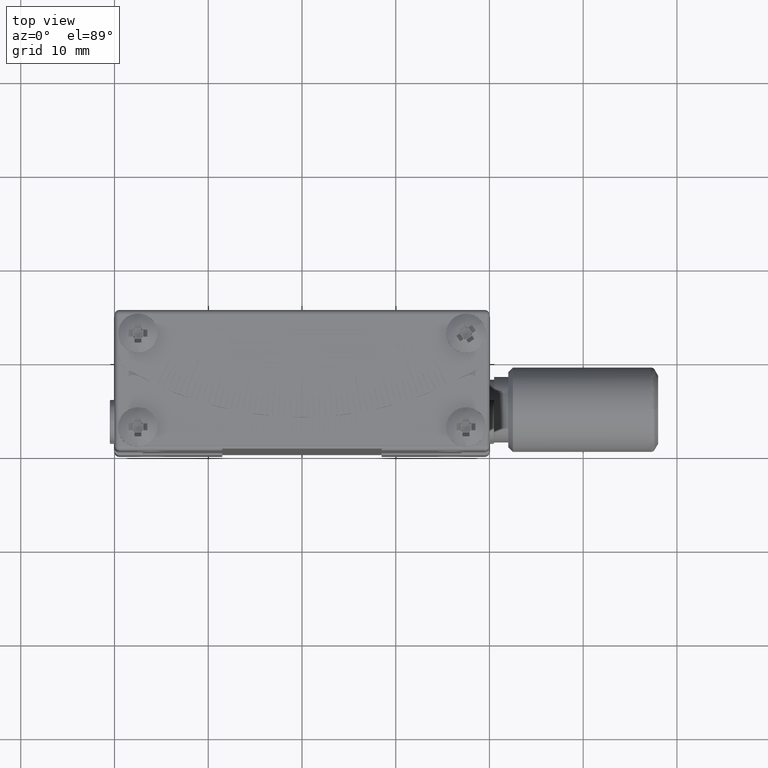
[diagram: clean part render]
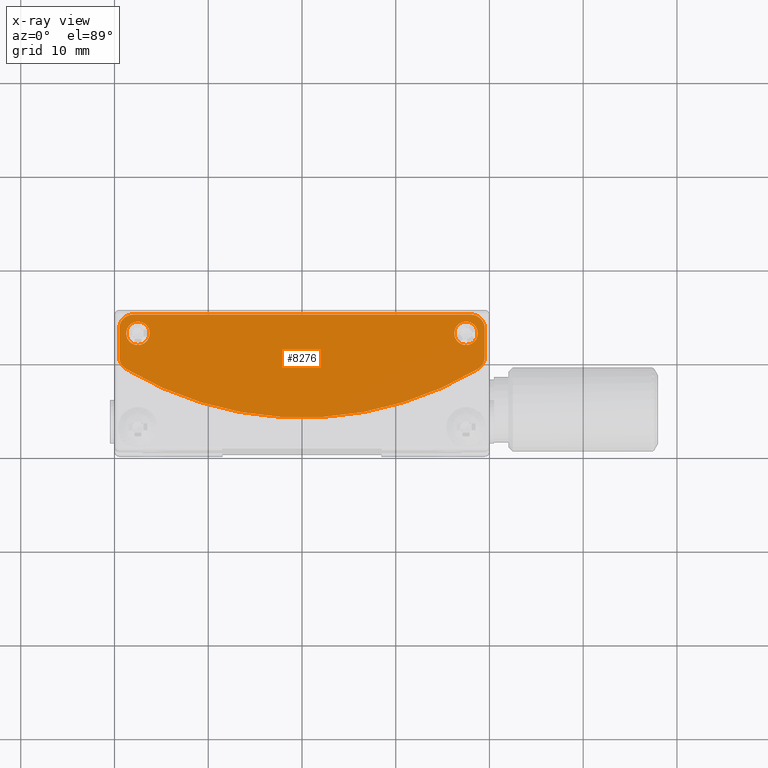
[diagram: x-ray — body ghosted, one internal face saturated and labeled with its STEP entity id]
A machine part, top view, then the same camera in x-ray: the body is ghosted and one INTERNAL B-rep face — a face not visible from any outside direction — is saturated and labeled: STEP entity #8276.
In plain terms, the highlighted planar face has unit normal (0, 0, -1).
Its self-contained STEP definition (entity closure, byte-faithful):
#474 = AXIS2_PLACEMENT_3D ( 'NONE', #20918, #14311, #21202 ) ;
#627 = AXIS2_PLACEMENT_3D ( 'NONE', #5331, #1351, #16334 ) ;
#703 = AXIS2_PLACEMENT_3D ( 'NONE', #8646, #15693, #22446 ) ;
#850 = DIRECTION ( 'NONE',  ( 1.000000000000000000, 0.000000000000000000, 0.000000000000000000 ) ) ;
#870 = AXIS2_PLACEMENT_3D ( 'NONE', #5677, #11987, #23581 ) ;
#997 = DIRECTION ( 'NONE',  ( 0.000000000000000000, 0.000000000000000000, 1.000000000000000000 ) ) ;
#1351 = DIRECTION ( 'NONE',  ( 0.000000000000000000, 0.000000000000000000, 1.000000000000000000 ) ) ;
#1472 = CARTESIAN_POINT ( 'NONE',  ( -18.00000000000000000, 14.50000000000000000, 20.00000000000000000 ) ) ;
#1638 = CARTESIAN_POINT ( 'NONE',  ( 17.50000000000000000, 12.50000000000000000, 20.00000000000000000 ) ) ;
#1890 = VERTEX_POINT ( 'NONE', #23018 ) ;
#1958 = VERTEX_POINT ( 'NONE', #3186 ) ;
#2032 = AXIS2_PLACEMENT_3D ( 'NONE', #1638, #17340, #26300 ) ;
#2259 = ORIENTED_EDGE ( 'NONE', *, *, #14918, .F. ) ;
#2287 = EDGE_CURVE ( 'NONE', #28669, #6924, #26406, .T. ) ;
#2566 = EDGE_CURVE ( 'NONE', #11708, #5700, #6740, .T. ) ;
#3186 = CARTESIAN_POINT ( 'NONE',  ( 19.50000000000000000, 9.983337960392740129, 20.00000000000000000 ) ) ;
#3264 = LINE ( 'NONE', #6996, #5035 ) ;
#3690 = CARTESIAN_POINT ( 'NONE',  ( -16.25000000000000000, 12.50000000000000000, 20.00000000000000000 ) ) ;
#3693 = PLANE ( 'NONE',  #16394 ) ;
#4644 = LINE ( 'NONE', #19745, #21766 ) ;
#4696 = CARTESIAN_POINT ( 'NONE',  ( 18.77142857142855092, 8.696909587266709707, 20.00000000000000000 ) ) ;
#4752 = DIRECTION ( 'NONE',  ( -1.000000000000000000, 0.000000000000000000, 0.000000000000000000 ) ) ;
#5035 = VECTOR ( 'NONE', #13602, 1000.000000000000000 ) ;
#5233 = EDGE_CURVE ( 'NONE', #23339, #28669, #14775, .T. ) ;
#5331 = CARTESIAN_POINT ( 'NONE',  ( 6.071532165918820097E-15, 40.00000000000000000, 20.00000000000000000 ) ) ;
#5339 = CARTESIAN_POINT ( 'NONE',  ( 18.00000000000000000, 14.50000000000000000, 20.00000000000000000 ) ) ;
#5677 = CARTESIAN_POINT ( 'NONE',  ( 17.50000000000000000, 12.50000000000000000, 20.00000000000000000 ) ) ;
#5700 = VERTEX_POINT ( 'NONE', #16088 ) ;
#5756 = FACE_BOUND ( 'NONE', #19684, .T. ) ;
#5883 = ORIENTED_EDGE ( 'NONE', *, *, #8782, .F. ) ;
#5929 = CARTESIAN_POINT ( 'NONE',  ( -18.75000000000000000, 12.50000000000000000, 20.00000000000000000 ) ) ;
#6740 = CIRCLE ( 'NONE', #2032, 1.250000000000001110 ) ;
#6924 = VERTEX_POINT ( 'NONE', #4696 ) ;
#6996 = CARTESIAN_POINT ( 'NONE',  ( -18.00000000000000000, 14.50000000000000000, 20.00000000000000000 ) ) ;
#7146 = AXIS2_PLACEMENT_3D ( 'NONE', #15339, #17830, #11084 ) ;
#7302 = DIRECTION ( 'NONE',  ( 0.000000000000000000, 0.000000000000000000, 1.000000000000000000 ) ) ;
#7681 = EDGE_CURVE ( 'NONE', #21508, #23339, #4644, .T. ) ;
#7812 = FACE_OUTER_BOUND ( 'NONE', #22946, .T. ) ;
#7910 = CARTESIAN_POINT ( 'NONE',  ( 19.50000000000000000, 13.00000000000000000, 20.00000000000000000 ) ) ;
#8207 = LINE ( 'NONE', #7910, #22221 ) ;
#8276 = ADVANCED_FACE ( 'NONE', ( #18964, #5756, #7812 ), #3693, .T. ) ;
#8646 = CARTESIAN_POINT ( 'NONE',  ( -18.00000000000000000, 9.983337960392740129, 20.00000000000000000 ) ) ;
#8711 = ORIENTED_EDGE ( 'NONE', *, *, #24785, .F. ) ;
#8782 = EDGE_CURVE ( 'NONE', #13944, #21508, #10797, .T. ) ;
#9084 = CIRCLE ( 'NONE', #23140, 1.250000000000001110 ) ;
#9647 = CARTESIAN_POINT ( 'NONE',  ( -18.77142857142855092, 8.696909587266709707, 20.00000000000000000 ) ) ;
#9980 = ORIENTED_EDGE ( 'NONE', *, *, #10183, .F. ) ;
#10183 = EDGE_CURVE ( 'NONE', #17808, #13944, #3264, .T. ) ;
#10797 = CIRCLE ( 'NONE', #474, 1.500000000000001332 ) ;
#11084 = DIRECTION ( 'NONE',  ( -1.000000000000000000, 0.000000000000000000, 0.000000000000000000 ) ) ;
#11671 = CIRCLE ( 'NONE', #870, 1.250000000000001110 ) ;
#11708 = VERTEX_POINT ( 'NONE', #12955 ) ;
#11987 = DIRECTION ( 'NONE',  ( 0.000000000000000000, 0.000000000000000000, 1.000000000000000000 ) ) ;
#12276 = EDGE_LOOP ( 'NONE', ( #28755, #24494 ) ) ;
#12728 = VERTEX_POINT ( 'NONE', #5929 ) ;
#12955 = CARTESIAN_POINT ( 'NONE',  ( 16.25000000000000000, 12.50000000000000000, 20.00000000000000000 ) ) ;
#13602 = DIRECTION ( 'NONE',  ( -1.000000000000000000, -9.637352644315598941E-17, 0.000000000000000000 ) ) ;
#13842 = CARTESIAN_POINT ( 'NONE',  ( -17.50000000000000000, 12.50000000000000000, 20.00000000000000000 ) ) ;
#13944 = VERTEX_POINT ( 'NONE', #1472 ) ;
#14219 = CARTESIAN_POINT ( 'NONE',  ( 18.00000000000000000, 9.983337960392740129, 20.00000000000000000 ) ) ;
#14311 = DIRECTION ( 'NONE',  ( 0.000000000000000000, 0.000000000000000000, 1.000000000000000000 ) ) ;
#14707 = DIRECTION ( 'NONE',  ( 0.000000000000000000, 0.000000000000000000, -1.000000000000000000 ) ) ;
#14775 = CIRCLE ( 'NONE', #703, 1.500000000000001332 ) ;
#14918 = EDGE_CURVE ( 'NONE', #6924, #1958, #24471, .T. ) ;
#15339 = CARTESIAN_POINT ( 'NONE',  ( -17.50000000000000000, 12.50000000000000000, 20.00000000000000000 ) ) ;
#15693 = DIRECTION ( 'NONE',  ( 0.000000000000000000, 0.000000000000000000, 1.000000000000000000 ) ) ;
#16088 = CARTESIAN_POINT ( 'NONE',  ( 18.75000000000000000, 12.50000000000000000, 20.00000000000000000 ) ) ;
#16334 = DIRECTION ( 'NONE',  ( 1.000000000000000000, 0.000000000000000000, 0.000000000000000000 ) ) ;
#16394 = AXIS2_PLACEMENT_3D ( 'NONE', #16759, #14707, #21312 ) ;
#16516 = CIRCLE ( 'NONE', #7146, 1.250000000000001110 ) ;
#16759 = CARTESIAN_POINT ( 'NONE',  ( 18.00000000000000000, 13.00000000000000000, 20.00000000000000000 ) ) ;
#17151 = DIRECTION ( 'NONE',  ( 3.450284028904965013E-15, 1.000000000000000000, 0.000000000000000000 ) ) ;
#17340 = DIRECTION ( 'NONE',  ( 0.000000000000000000, 0.000000000000000000, 1.000000000000000000 ) ) ;
#17808 = VERTEX_POINT ( 'NONE', #5339 ) ;
#17830 = DIRECTION ( 'NONE',  ( 0.000000000000000000, 0.000000000000000000, 1.000000000000000000 ) ) ;
#18806 = EDGE_CURVE ( 'NONE', #23364, #12728, #16516, .T. ) ;
#18964 = FACE_BOUND ( 'NONE', #12276, .T. ) ;
#19678 = CARTESIAN_POINT ( 'NONE',  ( -19.50000000000000000, 9.983337960392740129, 20.00000000000000000 ) ) ;
#19684 = EDGE_LOOP ( 'NONE', ( #26064, #28113 ) ) ;
#19745 = CARTESIAN_POINT ( 'NONE',  ( -19.50000000000000000, 13.00000000000000000, 20.00000000000000000 ) ) ;
#20219 = CARTESIAN_POINT ( 'NONE',  ( 18.00000000000000000, 13.00000000000000000, 20.00000000000000000 ) ) ;
#20366 = DIRECTION ( 'NONE',  ( -1.000000000000000000, 0.000000000000000000, 0.000000000000000000 ) ) ;
#20918 = CARTESIAN_POINT ( 'NONE',  ( -18.00000000000000000, 13.00000000000000000, 20.00000000000000000 ) ) ;
#21202 = DIRECTION ( 'NONE',  ( 1.000000000000000000, 0.000000000000000000, 0.000000000000000000 ) ) ;
#21312 = DIRECTION ( 'NONE',  ( 0.000000000000000000, -1.000000000000000000, 0.000000000000000000 ) ) ;
#21315 = ORIENTED_EDGE ( 'NONE', *, *, #7681, .F. ) ;
#21508 = VERTEX_POINT ( 'NONE', #24161 ) ;
#21766 = VECTOR ( 'NONE', #24744, 1000.000000000000000 ) ;
#22221 = VECTOR ( 'NONE', #17151, 1000.000000000000000 ) ;
#22446 = DIRECTION ( 'NONE',  ( 1.000000000000000000, 0.000000000000000000, 0.000000000000000000 ) ) ;
#22946 = EDGE_LOOP ( 'NONE', ( #8711, #27419, #2259, #25428, #24757, #21315, #5883, #9980 ) ) ;
#23018 = CARTESIAN_POINT ( 'NONE',  ( 19.50000000000000000, 13.00000000000000000, 20.00000000000000000 ) ) ;
#23099 = EDGE_CURVE ( 'NONE', #12728, #23364, #9084, .T. ) ;
#23140 = AXIS2_PLACEMENT_3D ( 'NONE', #13842, #28982, #4752 ) ;
#23339 = VERTEX_POINT ( 'NONE', #19678 ) ;
#23364 = VERTEX_POINT ( 'NONE', #3690 ) ;
#23581 = DIRECTION ( 'NONE',  ( 1.000000000000000000, 0.000000000000000000, 0.000000000000000000 ) ) ;
#23606 = EDGE_CURVE ( 'NONE', #1958, #1890, #8207, .T. ) ;
#24161 = CARTESIAN_POINT ( 'NONE',  ( -19.50000000000000000, 13.00000000000000000, 20.00000000000000000 ) ) ;
#24471 = CIRCLE ( 'NONE', #24951, 1.500000000000001332 ) ;
#24494 = ORIENTED_EDGE ( 'NONE', *, *, #18806, .T. ) ;
#24744 = DIRECTION ( 'NONE',  ( 3.450284028904965013E-15, -1.000000000000000000, 0.000000000000000000 ) ) ;
#24757 = ORIENTED_EDGE ( 'NONE', *, *, #5233, .F. ) ;
#24785 = EDGE_CURVE ( 'NONE', #1890, #17808, #26965, .T. ) ;
#24951 = AXIS2_PLACEMENT_3D ( 'NONE', #14219, #997, #850 ) ;
#25428 = ORIENTED_EDGE ( 'NONE', *, *, #2287, .F. ) ;
#25544 = AXIS2_PLACEMENT_3D ( 'NONE', #20219, #7302, #20366 ) ;
#25866 = EDGE_CURVE ( 'NONE', #5700, #11708, #11671, .T. ) ;
#26064 = ORIENTED_EDGE ( 'NONE', *, *, #2566, .T. ) ;
#26300 = DIRECTION ( 'NONE',  ( 1.000000000000000000, 0.000000000000000000, 0.000000000000000000 ) ) ;
#26406 = CIRCLE ( 'NONE', #627, 36.50000000000000000 ) ;
#26965 = CIRCLE ( 'NONE', #25544, 1.500000000000001332 ) ;
#27419 = ORIENTED_EDGE ( 'NONE', *, *, #23606, .F. ) ;
#28113 = ORIENTED_EDGE ( 'NONE', *, *, #25866, .T. ) ;
#28669 = VERTEX_POINT ( 'NONE', #9647 ) ;
#28755 = ORIENTED_EDGE ( 'NONE', *, *, #23099, .T. ) ;
#28982 = DIRECTION ( 'NONE',  ( 0.000000000000000000, 0.000000000000000000, 1.000000000000000000 ) ) ;